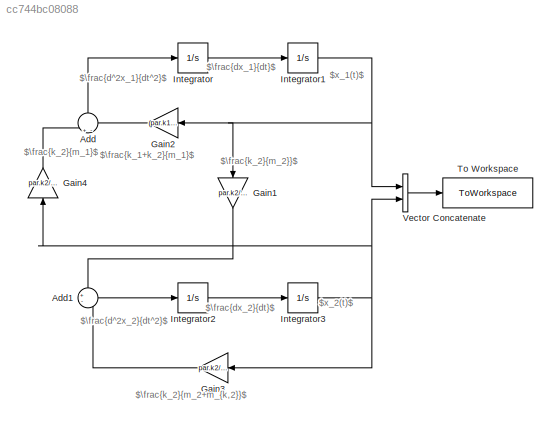
MODEL slx_cc744bc08088
KIND model
CONFIG AbsTol = auto
CONFIG EnableMultiTasking = off
CONFIG FixedStep = auto
CONFIG MaxStep = auto
CONFIG MinStep = auto
CONFIG RelTol = 1e-3
CONFIG SampleTimeConstraint = Unconstrained
CONFIG Solver = VariableStepAuto
CONFIG SolverName = VariableStepAuto
CONFIG StartTime = 0.0
CONFIG StopTime = 20.0
BLOCK [Sum] Add
  Inputs = +-
  NameLocation = right
  Ports = [2, 1]
BLOCK [Sum] Add1
  Inputs = +-
  Ports = [2, 1]
BLOCK [Gain] Gain1
  Gain = par.k2/(par.m2+par.mk2)
  NameLocation = left
BLOCK [Gain] Gain2
  Gain = (par.k1+par.k2)/(par.m1+par.mk1)
  NameLocation = top
BLOCK [Gain] Gain3
  Gain = par.k2/(par.m2+par.mk2)
  NameLocation = top
BLOCK [Gain] Gain4
  Gain = par.k2/(par.m1+par.mk1)
  NameLocation = right
BLOCK [Integrator] Integrator
  Ports = [1, 1]
BLOCK [Integrator] Integrator1
  InitialCondition = con.x10
  Ports = [1, 1]
BLOCK [Integrator] Integrator2
  Ports = [1, 1]
BLOCK [Integrator] Integrator3
  InitialCondition = con.x20
  Ports = [1, 1]
BLOCK [ToWorkspace] To Workspace
  FixptAsFi = on
  MaxDataPoints = inf
  Ports = [1]
  SampleTime = -1
  SaveFormat = Timeseries
  VariableName = data
BLOCK [Concatenate] Vector Concatenate
  Ports = [2, 1]
ANNOTATION (root): $\frac{d^2x_1}{dt^2}$
ANNOTATION (root): $\frac{d^2x_2}{dt^2}$
ANNOTATION (root): $\frac{dx_1}{dt}$
ANNOTATION (root): $\frac{dx_2}{dt}$
ANNOTATION (root): $\frac{k_1+k_2}{m_1}$
ANNOTATION (root): $\frac{k_2}{m_1}$
ANNOTATION (root): $\frac{k_2}{m_2+m_{k,2}}$
ANNOTATION (root): $\frac{k_2}{m_2}}$
ANNOTATION (root): $x_1(t)$
ANNOTATION (root): $x_2(t)$
LINE Add1:1 -> Integrator2:1
LINE Add:1 -> Integrator:1
LINE Gain1:1 -> Add1:1
LINE Gain2:1 -> Add:2
LINE Gain3:1 -> Add1:2
LINE Gain4:1 -> Add:1
NET Integrator1:1 -> Gain1:1, Gain2:1, Vector Concatenate:1
LINE Integrator2:1 -> Integrator3:1
NET Integrator3:1 -> Gain3:1, Gain4:1, Vector Concatenate:2
LINE Integrator:1 -> Integrator1:1
LINE Vector Concatenate:1 -> To Workspace:1
note: NET lines group one-source signal fan-out (src -> all destinations, sorted); 1:1 wires keep LINE
